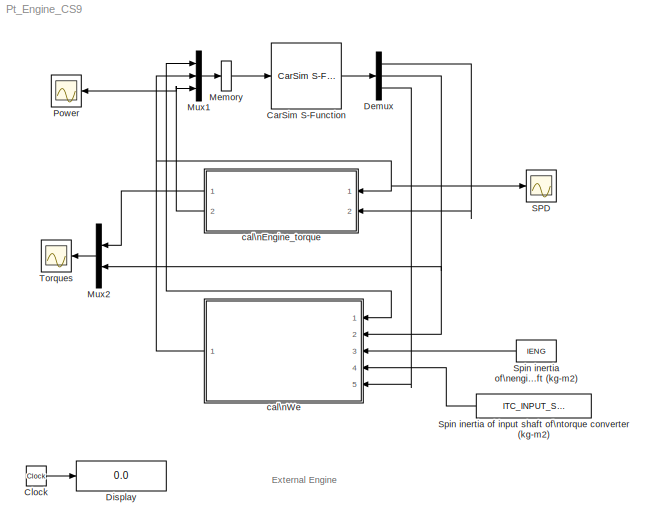
MODEL Pt_Engine_CS9
KIND model
CONFIG PreLoadFcn = cd Extensions/Simulink/pt_engine	\nmengine_carpet_eclass	\nRun_ft4wd_eclass	\ncd ../../..
BLOCK [Reference] CarSim S-Function  REF=Solver_SF/CarSim S-Function
  Ports = [1, 1]
  Priority = 1
  SID = 1
  SIMFILE = simfile.sim
  SourceBlock = Solver_SF/CarSim S-Function
  SourceType = Vehicle math model library
BLOCK [Clock] Clock
  Decimation = 10
  SID = 2
BLOCK [Demux] Demux
  Outputs = 3
  Ports = [1, 3]
  SID = 3
BLOCK [Display] Display
  Decimation = 1
  Lockdown = off
  Ports = [1]
  SID = 4
BLOCK [Memory] Memory
  SID = 5
BLOCK [Mux] Mux1
  DisplayOption = bar
  Inputs = 3
  Ports = [3, 1]
  SID = 6
BLOCK [Mux] Mux2
  DisplayOption = bar
  Inputs = 2
  Ports = [2, 1]
  SID = 7
BLOCK [Scope] Power
  DataFormat = StructureWithTime
  Floating = off
  LimitDataPoints = off
  NumInputPorts = 1
  Ports = [1]
  SID = 8
  SaveName = ScopeData1
  TimeRange = 20
  YMax = 250
  YMin = 0
  ZoomMode = yonly
BLOCK [Scope] SPD
  DataFormat = StructureWithTime
  Floating = off
  LimitDataPoints = off
  NumInputPorts = 1
  Ports = [1]
  SID = 9
  TimeRange = 20
  YMax = 4500
  YMin = 500
BLOCK [Constant] Spin inertia of input shaft of\ntorque converter (kg-m2)
  SID = 11
  Value = ITC_INPUT_SHAFT
BLOCK [Constant] Spin inertia of\nengine crankshaft (kg-m2)
  SID = 10
  Value = IENG
BLOCK [Scope] Torques
  DataFormat = StructureWithTime
  Floating = off
  LimitDataPoints = off
  NumInputPorts = 1
  Ports = [1]
  SID = 12
  TimeRange = 20
  YMax = 600
  YMin = -50
  ZoomMode = yonly
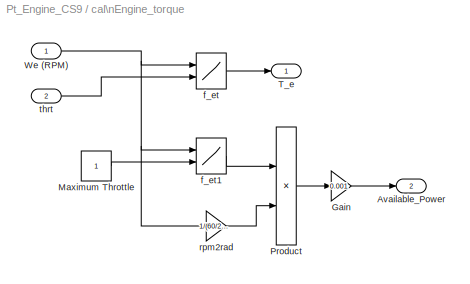
BLOCK [SubSystem] cal\nEngine_torque
  FunctionWithSeparateData = off
  MaskHideContents = off
  MinAlgLoopOccurrences = off
  Opaque = off
  Ports = [2, 2]
  PropExecContextOutsideSubsystem = off
  RTWSystemCode = Auto
  RequestExecContextInheritance = off
  SID = 13
BLOCK [Outport] cal\nEngine_torque/Available_Power
  IconDisplay = Port number
  Port = 2
  SID = 23
BLOCK [Gain] cal\nEngine_torque/Gain
  Gain = 0.001
  SID = 16
BLOCK [Constant] cal\nEngine_torque/Maximum Throttle
  SID = 17
BLOCK [Product] cal\nEngine_torque/Product
  Ports = [2, 1]
  RndMeth = Floor
  SID = 18
BLOCK [Outport] cal\nEngine_torque/T_e
  IconDisplay = Port number
  SID = 22
BLOCK [Inport] cal\nEngine_torque/We (RPM)
  IconDisplay = Port number
  SID = 14
BLOCK [Lookup2D] cal\nEngine_torque/f_et
  ColumnIndex = MENGINE_CARPET(1,2:11)
  RowIndex = MENGINE_CARPET(2:19,1)
  SID = 19
  Table = MENGINE_CARPET(2:19,2:11)
BLOCK [Lookup2D] cal\nEngine_torque/f_et1
  ColumnIndex = MENGINE_CARPET(1,2:11)
  RowIndex = MENGINE_CARPET(2:19,1)
  SID = 20
  Table = MENGINE_CARPET(2:19,2:11)
BLOCK [Gain] cal\nEngine_torque/rpm2rad
  Gain = 1/(60/2/pi)
  SID = 21
BLOCK [Inport] cal\nEngine_torque/thrt
  IconDisplay = Port number
  Port = 2
  SID = 15
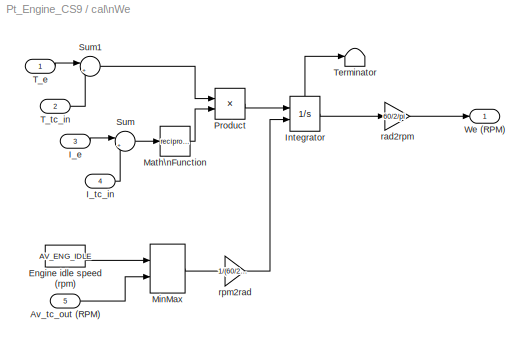
BLOCK [SubSystem] cal\nWe
  FunctionWithSeparateData = off
  MaskHideContents = off
  MinAlgLoopOccurrences = off
  Opaque = off
  Ports = [5, 1]
  PropExecContextOutsideSubsystem = off
  RTWSystemCode = Auto
  RequestExecContextInheritance = off
  SID = 24
BLOCK [Inport] cal\nWe/Av_tc_out (RPM)
  IconDisplay = Port number
  Port = 5
  SID = 29
BLOCK [Constant] cal\nWe/Engine idle speed (rpm)
  SID = 30
  Value = AV_ENG_IDLE
BLOCK [Inport] cal\nWe/I_e
  IconDisplay = Port number
  Port = 3
  SID = 27
BLOCK [Inport] cal\nWe/I_tc_in
  IconDisplay = Port number
  Port = 4
  SID = 28
BLOCK [Integrator] cal\nWe/Integrator
  InitialCondition = AV_ENG_IDLE*2*pi/60
  InitialConditionSource = external
  Ports = [2, 1, 0, 0, 1]
  SID = 31
  ShowStatePort = on
BLOCK [Math] cal\nWe/Math\nFunction
  Operator = reciprocal
  Ports = [1, 1]
  SID = 32
BLOCK [MinMax] cal\nWe/MinMax
  Function = max
  Inputs = 2
  Ports = [2, 1]
  SID = 33
BLOCK [Product] cal\nWe/Product
  Ports = [2, 1]
  RndMeth = Floor
  SID = 34
BLOCK [Sum] cal\nWe/Sum
  IconShape = round
  Inputs = |++
  Ports = [2, 1]
  SID = 35
BLOCK [Sum] cal\nWe/Sum1
  IconShape = round
  Inputs = |+-
  Ports = [2, 1]
  SID = 36
BLOCK [Inport] cal\nWe/T_e
  IconDisplay = Port number
  SID = 25
BLOCK [Inport] cal\nWe/T_tc_in
  IconDisplay = Port number
  Port = 2
  SID = 26
BLOCK [Terminator] cal\nWe/Terminator
  SID = 37
BLOCK [Outport] cal\nWe/We (RPM)
  IconDisplay = Port number
  SID = 40
BLOCK [Gain] cal\nWe/rad2rpm
  Gain = 60/2/pi
  SID = 38
BLOCK [Gain] cal\nWe/rpm2rad
  Gain = 1/(60/2/pi)
  SID = 39
ANNOTATION (root): External Engine
LINE CarSim S-Function:1 -> Demux:1
LINE Clock:1 -> Display:1
LINE Demux:1 -> cal\nEngine_torque:2
NET Demux:2 -> Mux2:2, cal\nWe:2
LINE Demux:3 -> cal\nWe:5
LINE Memory:1 -> CarSim S-Function:1
LINE Mux1:1 -> Memory:1
LINE Mux2:1 -> Torques:1
LINE Spin inertia of input shaft of\ntorque converter (kg-m2):1 -> cal\nWe:4
LINE Spin inertia of\nengine crankshaft (kg-m2):1 -> cal\nWe:3
LINE cal\nEngine_torque/Gain:1 -> cal\nEngine_torque/Available_Power:1
LINE cal\nEngine_torque/Maximum Throttle:1 -> cal\nEngine_torque/f_et1:2
LINE cal\nEngine_torque/Product:1 -> cal\nEngine_torque/Gain:1
NET cal\nEngine_torque/We (RPM):1 -> cal\nEngine_torque/f_et1:1, cal\nEngine_torque/f_et:1, cal\nEngine_torque/rpm2rad:1
LINE cal\nEngine_torque/f_et1:1 -> cal\nEngine_torque/Product:1
LINE cal\nEngine_torque/f_et:1 -> cal\nEngine_torque/T_e:1
LINE cal\nEngine_torque/rpm2rad:1 -> cal\nEngine_torque/Product:2
LINE cal\nEngine_torque/thrt:1 -> cal\nEngine_torque/f_et:2
NET cal\nEngine_torque:1 -> Mux1:1, Mux2:1, cal\nWe:1
NET cal\nEngine_torque:2 -> Mux1:3, Power:1
LINE cal\nWe/Av_tc_out (RPM):1 -> cal\nWe/MinMax:2
LINE cal\nWe/Engine idle speed (rpm):1 -> cal\nWe/MinMax:1
LINE cal\nWe/I_e:1 -> cal\nWe/Sum:1
LINE cal\nWe/I_tc_in:1 -> cal\nWe/Sum:2
LINE cal\nWe/Integrator:1 -> cal\nWe/rad2rpm:1
LINE cal\nWe/Integrator:state -> cal\nWe/Terminator:1
LINE cal\nWe/Math\nFunction:1 -> cal\nWe/Product:2
LINE cal\nWe/MinMax:1 -> cal\nWe/rpm2rad:1
LINE cal\nWe/Product:1 -> cal\nWe/Integrator:1
LINE cal\nWe/Sum1:1 -> cal\nWe/Product:1
LINE cal\nWe/Sum:1 -> cal\nWe/Math\nFunction:1
LINE cal\nWe/T_e:1 -> cal\nWe/Sum1:1
LINE cal\nWe/T_tc_in:1 -> cal\nWe/Sum1:2
LINE cal\nWe/rad2rpm:1 -> cal\nWe/We (RPM):1
LINE cal\nWe/rpm2rad:1 -> cal\nWe/Integrator:2
NET cal\nWe:1 -> Mux1:2, SPD:1, cal\nEngine_torque:1
note: NET lines group one-source signal fan-out (src -> all destinations, sorted); 1:1 wires keep LINE
